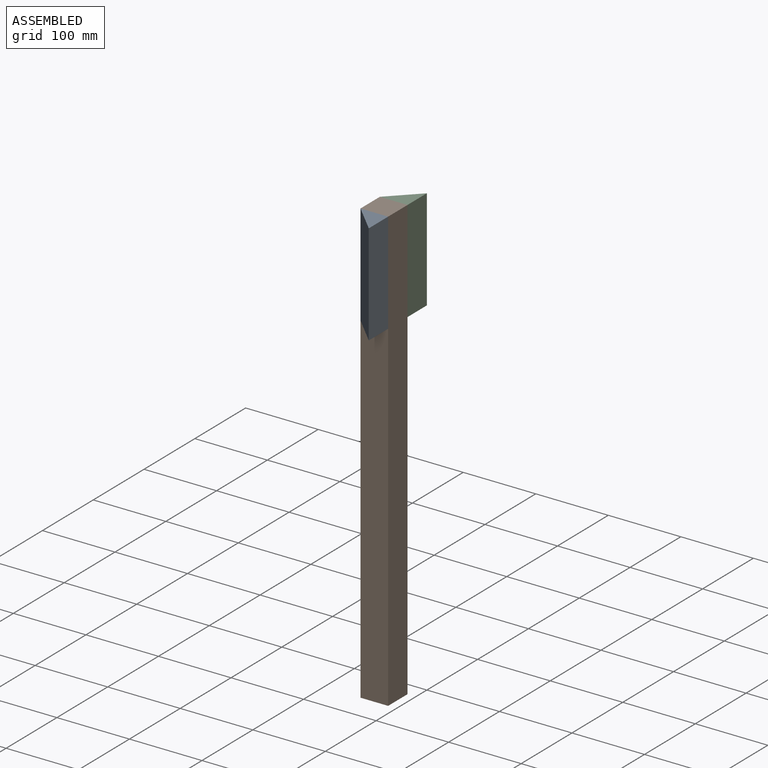
[diagram: assembled view]
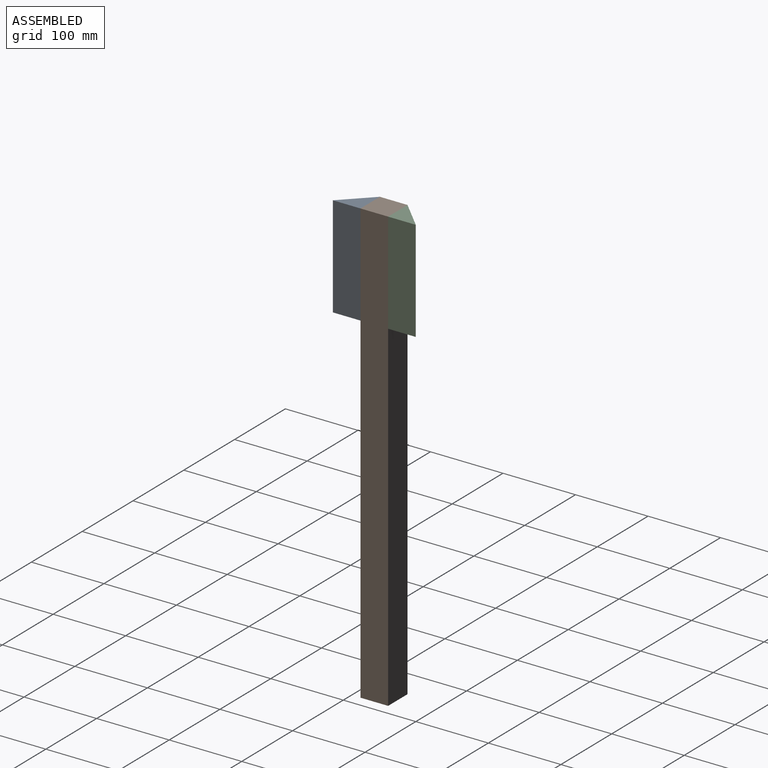
[diagram: assembled view, second angle]
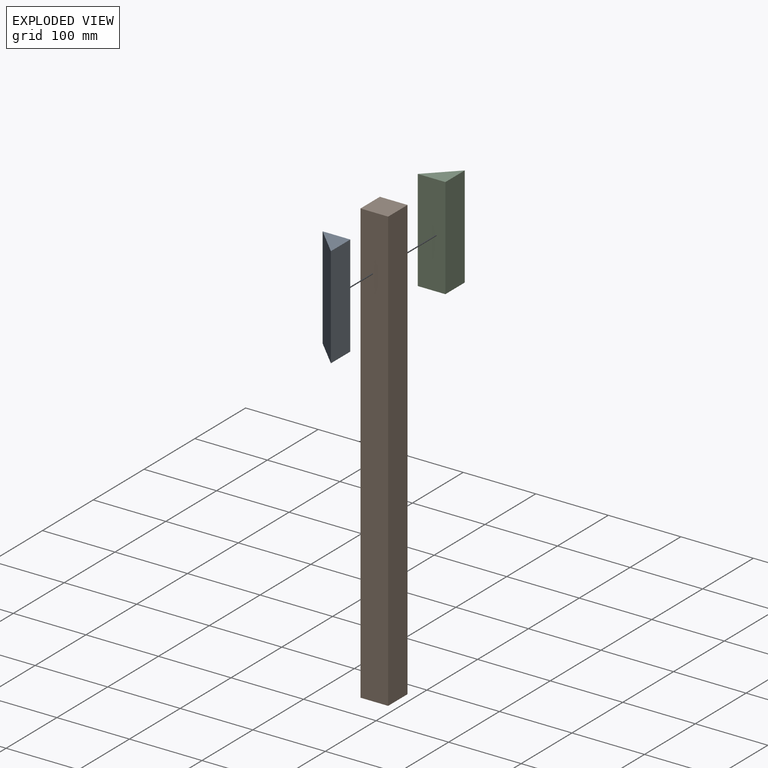
[diagram: exploded view]
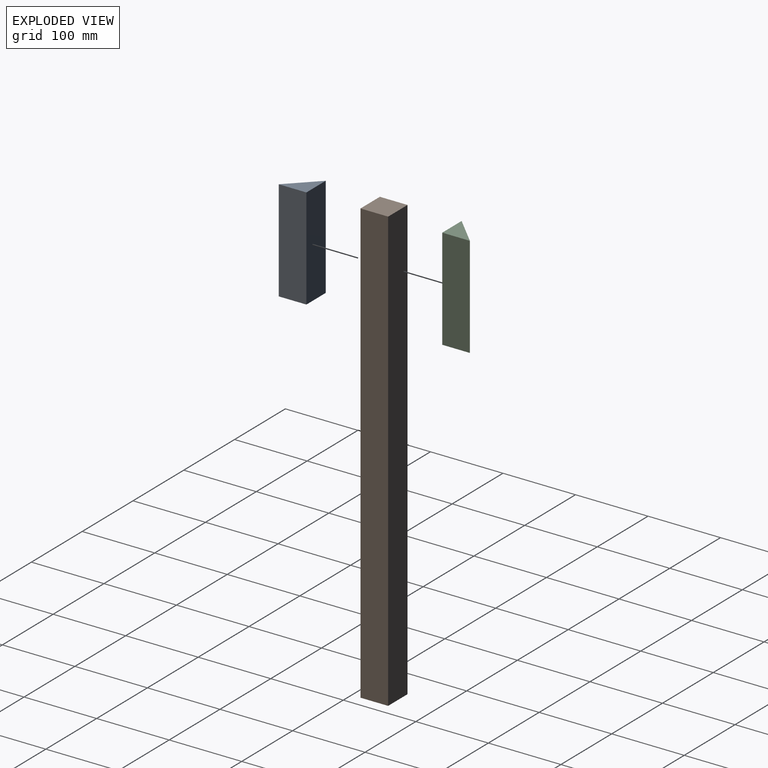
[diagram: exploded view, second angle]
ASSEMBLY  parts=3 mates=2
PART A: 5 faces, bbox 38.1x38.1x139.7 mm
  f0: plane 38.1x38.1mm, normal (0,0,-1), area 725.8mm2, adj f1,f2,f3
  f1: plane 139.7x38.1mm, normal (-0.71,0.71,0), area 7527.3mm2, adj f0,f2,f3,f4
  f2: plane 139.7x38.1mm, normal (0,-1,0), area 5322.6mm2, adj f0,f1,f3,f4
  f3: plane 139.7x38.1mm, normal (1,0,0), area 5322.6mm2, adj f0,f1,f2,f4
  f4: plane 38.1x38.1mm, normal (0,0,1), area 725.8mm2, adj f1,f2,f3
PART B: 6 faces, bbox 38.1x38.1x609.6 mm
  f0: plane 609.6x38.1mm, normal (0,-1,0), area 23225.8mm2, adj f1,f3,f4,f5
  f1: plane 609.6x38.1mm, normal (1,0,0), area 23225.8mm2, adj f0,f2,f4,f5
  f2: plane 609.6x38.1mm, normal (0,1,0), area 23225.8mm2, adj f1,f3,f4,f5
  f3: plane 609.6x38.1mm, normal (-1,0,0), area 23225.8mm2, adj f0,f2,f4,f5
  f4: plane 38.1x38.1mm, normal (0,0,-1), area 1451.6mm2, adj f0,f1,f2,f3
  f5: plane 38.1x38.1mm, normal (0,0,1), area 1451.6mm2, adj f0,f1,f2,f3
PART C: same geometry as A
PLACE A rot(axis=(0,0,1),90deg) t=(-38.1,-76.2,0)mm
PLACE B at identity
PLACE C at identity
MATE fastened C.f4 <-> B.f5  axis (0,0,1) through (-19.05,-38.1,139.7)mm
MATE fastened A.f4 <-> B.f5  axis (0,0,1) through (-19.05,-76.2,139.7)mm
